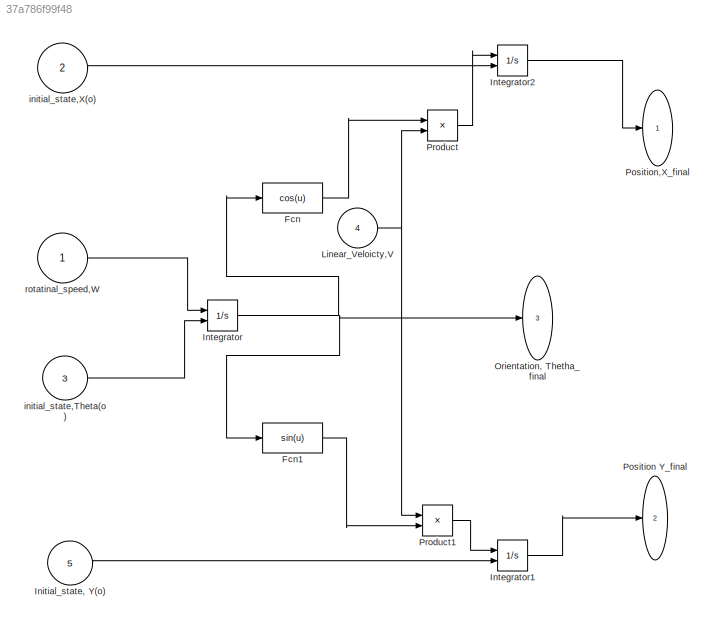
MODEL slx_37a786f99f48
KIND model
CONFIG AbsTol = auto
CONFIG EnableMultiTasking = off
CONFIG FixedStep = auto
CONFIG MaxStep = auto
CONFIG MinStep = auto
CONFIG RelTol = 1e-3
CONFIG SampleTimeConstraint = Unconstrained
CONFIG Solver = VariableStepAuto
CONFIG SolverName = VariableStepAuto
CONFIG StartTime = 0.0
CONFIG StopTime = 10.0
BLOCK [Fcn] Fcn
  Expr = cos(u)
BLOCK [Fcn] Fcn1
  Expr = sin(u)
BLOCK [Inport] Initial_state, Y(o)
  IconDisplay = Port number
  Port = 5
BLOCK [Integrator] Integrator
  InitialConditionSource = external
  Ports = [2, 1]
BLOCK [Integrator] Integrator1
  InitialConditionSource = external
  Ports = [2, 1]
BLOCK [Integrator] Integrator2
  InitialConditionSource = external
  Ports = [2, 1]
BLOCK [Inport] Linear_Veloicty,V 
  IconDisplay = Port number
  Port = 4
BLOCK [Outport] Orientation, Thetha_final
  IconDisplay = Port number
  Port = 3
BLOCK [Outport] Position Y_final 
  IconDisplay = Port number
  Port = 2
BLOCK [Outport] Position,X_final 
  IconDisplay = Port number
BLOCK [Product] Product
  InputSameDT = off
  OutDataTypeStr = Inherit: Inherit via internal rule
  Ports = [2, 1]
  RndMeth = Floor
  SaturateOnIntegerOverflow = off
BLOCK [Product] Product1
  InputSameDT = off
  OutDataTypeStr = Inherit: Inherit via internal rule
  Ports = [2, 1]
  RndMeth = Floor
  SaturateOnIntegerOverflow = off
BLOCK [Inport] initial_state,Theta(o) 
  IconDisplay = Port number
  Port = 3
BLOCK [Inport] initial_state,X(o) 
  IconDisplay = Port number
  Port = 2
BLOCK [Inport] rotatinal_speed,W 
  IconDisplay = Port number
LINE Fcn1:1 -> Product1:2
LINE Fcn:1 -> Product:1
LINE Initial_state, Y(o):1 -> Integrator1:2
LINE Integrator1:1 -> Position Y_final :1
LINE Integrator2:1 -> Position,X_final :1
NET Integrator:1 -> Fcn1:1, Fcn:1, Orientation, Thetha_final:1
NET Linear_Veloicty,V :1 -> Product1:1, Product:2
LINE Product1:1 -> Integrator1:1
LINE Product:1 -> Integrator2:1
LINE initial_state,Theta(o) :1 -> Integrator:2
LINE initial_state,X(o) :1 -> Integrator2:2
LINE rotatinal_speed,W :1 -> Integrator:1
note: NET lines group one-source signal fan-out (src -> all destinations, sorted); 1:1 wires keep LINE
